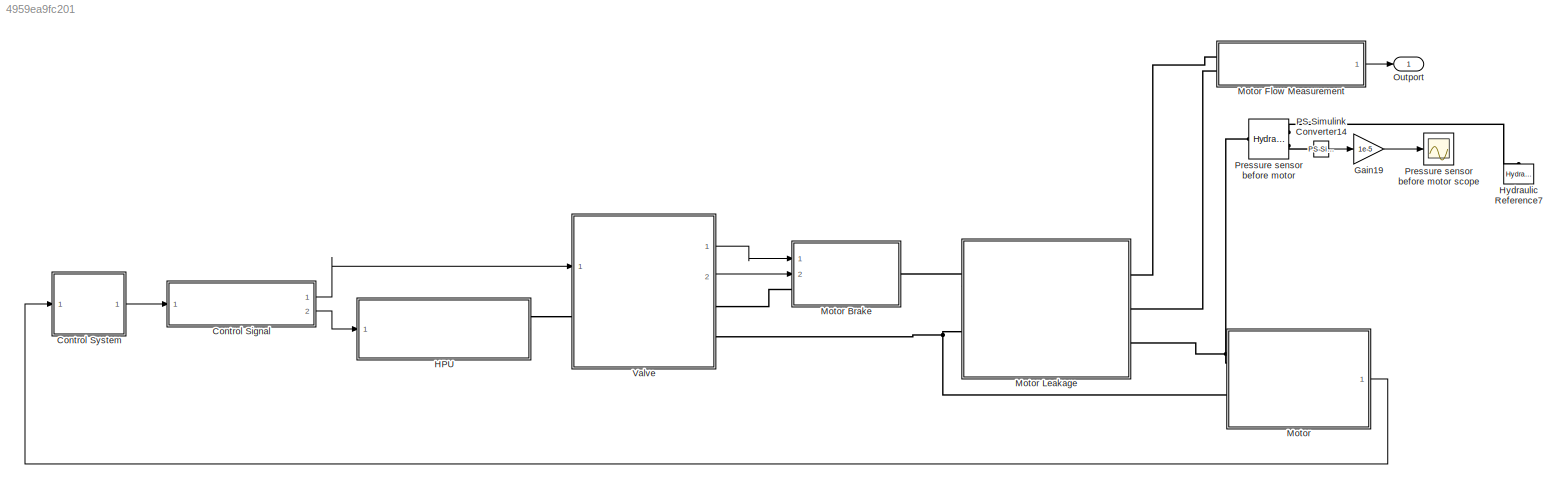
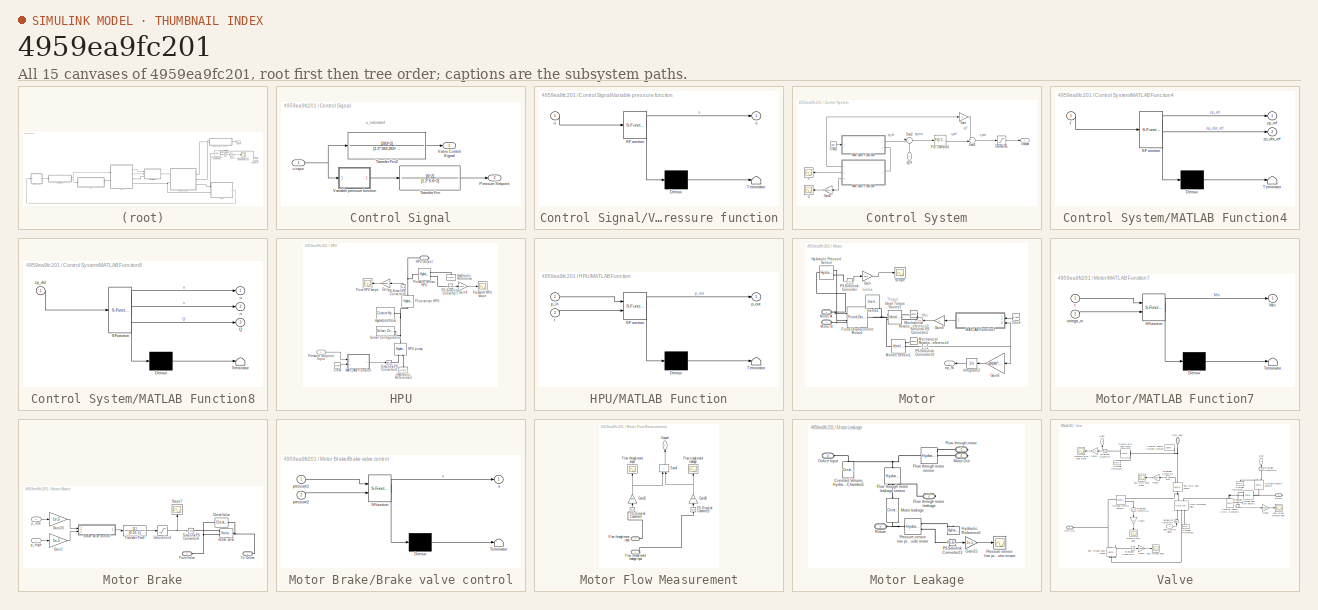
[diagram: thumbnail index - all 15 canvases of the model, root first then tree order]
MODEL slx_4959ea9fc201
KIND model
CONFIG AbsTol = auto
CONFIG EnableMultiTasking = off
CONFIG FixedStep = auto
CONFIG MaxStep = auto
CONFIG MinStep = auto
CONFIG RelTol = 1e-3
CONFIG SampleTimeConstraint = Unconstrained
CONFIG SolverName = VariableStepAuto
CONFIG StartTime = 0.0
CONFIG StopTime = 20
WORKSPACE source: MATLAB code (in-file)
WORKSPACE rho = 875
WORKSPACE P_r = 70e5  (= 7000000)
WORKSPACE Cd = 0.7
WORKSPACE Q_r = 200/6e4  (= 0.00333333333333)
WORKSPACE AdMax = Q_r/Cd/sqrt(2/rho*P_r/2)
WORKSPACE g = 9.81
WORKSPACE zw = 0.8
WORKSPACE tw = 10
WORKSPACE ig = 46
WORKSPACE m = 9000
WORKSPACE mueq = 0.15
WORKSPACE dd = 0.45
WORKSPACE nyv = 0.92
WORKSPACE rd = dd/2  (= 0.225)
WORKSPACE omega0 = 5
WORKSPACE omegap = 1500
WORKSPACE nsh = 3
WORKSPACE gearrationsh = nsh.*2
BLOCK [SubSystem] Control Signal
  Ports = [1, 2]
BLOCK [Outport] Control Signal/Pressure Setpoint
  Port = 2
BLOCK [TransferFcn] Control Signal/Transfer Fcn
  Denominator = [1 2*6 6^2]
  Numerator = [6^2]
BLOCK [TransferFcn] Control Signal/Transfer Fcn2
  Denominator = [1 2*283 283^2]
  Numerator = [283^2]
BLOCK [Outport] Control Signal/Valve Control Signal
BLOCK [SubSystem] Control Signal/Variable pressure function
  ErrorFcn = Stateflow.Translate.translate
  PermitHierarchicalResolution = ExplicitOnly
  Ports = [1, 1]
  SFBlockType = MATLAB Function
  TreatAsAtomicUnit = on
BLOCK [Demux] Control Signal/Variable pressure function/ Demux 
  Outputs = 1
  Ports = [1, 1]
BLOCK [S-Function] Control Signal/Variable pressure function/ SFunction 
  EnableBusSupport = on
  FunctionName = sf_sfun
  PortCounts = [1 2]
  Ports = [1, 2]
  SFcnIsStateOwnerBlock = off
  SFunctionDeploymentMode = off
  Tag = Stateflow S-Function 7
BLOCK [Terminator] Control Signal/Variable pressure function/ Terminator 
BLOCK [Outport] Control Signal/Variable pressure function/s
BLOCK [Inport] Control Signal/Variable pressure function/u
BLOCK [Inport] Control Signal/u input
BLOCK [SubSystem] Control System
  Ports = [1, 1]
BLOCK [Clock] Control System/Clock2
BLOCK [Gain] Control System/Gain
BLOCK [Gain] Control System/Gain17
  Gain = 60000
  NameLocation = top
BLOCK [SubSystem] Control System/MATLAB Function4
  ErrorFcn = Stateflow.Translate.translate
  PermitHierarchicalResolution = ExplicitOnly
  Ports = [1, 2]
  SFBlockType = MATLAB Function
  TreatAsAtomicUnit = on
BLOCK [Demux] Control System/MATLAB Function4/ Demux 
  Outputs = 1
  Ports = [1, 1]
BLOCK [S-Function] Control System/MATLAB Function4/ SFunction 
  EnableBusSupport = on
  FunctionName = sf_sfun
  PortCounts = [1 3]
  Ports = [1, 3]
  SFcnIsStateOwnerBlock = off
  SFunctionDeploymentMode = off
  Tag = Stateflow S-Function 6
BLOCK [Terminator] Control System/MATLAB Function4/ Terminator 
BLOCK [Inport] Control System/MATLAB Function4/t
BLOCK [Outport] Control System/MATLAB Function4/zp_dot_ref
  Port = 2
BLOCK [Outport] Control System/MATLAB Function4/zp_ref
BLOCK [SubSystem] Control System/MATLAB Function8
  ErrorFcn = Stateflow.Translate.translate
  NameLocation = top
  PermitHierarchicalResolution = ExplicitOnly
  Ports = [1, 3]
  SFBlockType = MATLAB Function
  TreatAsAtomicUnit = on
BLOCK [Demux] Control System/MATLAB Function8/ Demux 
  Outputs = 1
  Ports = [1, 1]
BLOCK [S-Function] Control System/MATLAB Function8/ SFunction 
  EnableBusSupport = on
  FunctionName = sf_sfun
  PortCounts = [1 4]
  Ports = [1, 4]
  SFcnIsStateOwnerBlock = off
  SFunctionDeploymentMode = off
  Tag = Stateflow S-Function 11
BLOCK [Terminator] Control System/MATLAB Function8/ Terminator 
BLOCK [Outport] Control System/MATLAB Function8/Q
  Port = 3
BLOCK [Outport] Control System/MATLAB Function8/n
  Port = 2
BLOCK [Outport] Control System/MATLAB Function8/u
BLOCK [Inport] Control System/MATLAB Function8/zp_dot
BLOCK [Reference] Control System/PID Controller1  REF=slpidlib/PID Controller
  Ports = [1, 1]
  SourceBlock = slpidlib/PID Controller
  SourceType = PID 1dof
BLOCK [Scope] Control System/Q
  Floating = off
  NameLocation = top
  NumInputPorts = 1
  Ports = [1]
  ScopeSpecificationString = Simulink.scopes.TimeScopeBlockCfg('CurrentConfiguration', extmgr.ConfigurationSet(extmgr.Configuration('Core','General UI',true),extmgr.Configuration('Core','Source UI',true),extmgr.Configuration('Sources','WiredSimulink',true,'DataLoggingVariableName','ScopeData10'),extmgr.Configuration('Visuals','Time Domain',true,'SerializedDisplays',{struct('MinYLimReal','-206.8159','MaxYLimReal','206.81599','...<+1378ch>
BLOCK [Saturate] Control System/Saturation1
  LowerLimit = -1
  UpperLimit = 1
BLOCK [Sum] Control System/Sum2
  Inputs = |+-
  Ports = [2, 1]
BLOCK [Sum] Control System/Sum3
  Inputs = ++|
  Ports = [2, 1]
BLOCK [Scope] Control System/n
  Floating = off
  NameLocation = top
  NumInputPorts = 1
  Ports = [1]
  ScopeSpecificationString = Simulink.scopes.TimeScopeBlockCfg('CurrentConfiguration', extmgr.ConfigurationSet(extmgr.Configuration('Core','General UI',true),extmgr.Configuration('Core','Source UI',true),extmgr.Configuration('Sources','WiredSimulink',true,'DataLoggingVariableName','ScopeData9'),extmgr.Configuration('Visuals','Time Domain',true,'SerializedDisplays',{struct('MinYLimReal','-122.66661','MaxYLimReal','122.66666','...<+1391ch>
BLOCK [Outport] Control System/u output
BLOCK [Inport] Control System/zp_fb
  NameLocation = right
BLOCK [Gain] Gain19
  Gain = 1e-5
BLOCK [SubSystem] HPU
  Ports = [1, 0, 0, 0, 0, 0, 1]
BLOCK [Clock] HPU/Clock
BLOCK [Scope] HPU/Flow HPU scope
  Floating = off
  NameLocation = top
  NumInputPorts = 1
  Ports = [1]
  ScopeSpecificationString = Simulink.scopes.TimeScopeBlockCfg('CurrentConfiguration', extmgr.ConfigurationSet(extmgr.Configuration('Core','General UI',true),extmgr.Configuration('Core','Source UI',true),extmgr.Configuration('Sources','WiredSimulink',true,'DataLoggingVariableName','ScopeData1'),extmgr.Configuration('Visuals','Time Domain',true,'SerializedDisplays',{struct('MinYLimReal','-25.2073','MaxYLimReal','226.86558','YL...<+1371ch>
BLOCK [Reference] HPU/Flow sensor HPU  REF=fl_lib/Hydraulic/Hydraulic Sensors/Hydraulic Flow Rate
Sensor
  NameLocation = right
  Ports = [0, 0, 0, 0, 0, 1, 3]
  SourceBlock = fl_lib/Hydraulic/Hydraulic Sensors/Hydraulic Flow Rate\nSensor
  SourceType = Hydraulic Flow Rate\nSensor
BLOCK [Gain] HPU/Gain
  Gain = 60000
  NameLocation = top
BLOCK [Gain] HPU/Gain4
  Gain = 1e-5
BLOCK [PMIOPort] HPU/HPU Output
  Side = Right
BLOCK [Reference] HPU/HPU pump  REF=fl_lib/Hydraulic/Hydraulic Sources/Hydraulic Pressure
Source
  NameLocation = right
  Ports = [0, 0, 0, 0, 0, 1, 2]
  SourceBlock = fl_lib/Hydraulic/Hydraulic Sources/Hydraulic Pressure\nSource
  SourceType = Hydraulic Pressure\nSource
BLOCK [Reference] HPU/Hydraulic Reference  REF=fl_lib/Hydraulic/Hydraulic Elements/Hydraulic Reference
  NameLocation = right
  Ports = [0, 0, 0, 0, 0, 1]
  SourceBlock = fl_lib/Hydraulic/Hydraulic Elements/Hydraulic Reference
  SourceType = Hydraulic Reference
BLOCK [Reference] HPU/Hydraulic Reference3  REF=fl_lib/Hydraulic/Hydraulic Elements/Hydraulic Reference
  NameLocation = right
  Ports = [0, 0, 0, 0, 0, 1]
  SourceBlock = fl_lib/Hydraulic/Hydraulic Elements/Hydraulic Reference
  SourceType = Hydraulic Reference
BLOCK [Reference] HPU/Hydraulic fluid  REF=fl_lib/Hydraulic/Hydraulic Utilities/Custom Hydraulic
Fluid
  Ports = [0, 0, 0, 0, 0, 0, 1]
  SourceBlock = fl_lib/Hydraulic/Hydraulic Utilities/Custom Hydraulic\nFluid
  SourceType = Custom Hydraulic\nFluid
BLOCK [SubSystem] HPU/MATLAB Function
  ErrorFcn = Stateflow.Translate.translate
  PermitHierarchicalResolution = ExplicitOnly
  Ports = [2, 1]
  SFBlockType = MATLAB Function
  TreatAsAtomicUnit = on
BLOCK [Demux] HPU/MATLAB Function/ Demux 
  Outputs = 1
  Ports = [1, 1]
BLOCK [S-Function] HPU/MATLAB Function/ SFunction 
  EnableBusSupport = on
  FunctionName = sf_sfun
  PortCounts = [2 2]
  Ports = [2, 2]
  SFcnIsStateOwnerBlock = off
  SFunctionDeploymentMode = off
  Tag = Stateflow S-Function 2
BLOCK [Terminator] HPU/MATLAB Function/ Terminator 
BLOCK [Inport] HPU/MATLAB Function/p_in
BLOCK [Outport] HPU/MATLAB Function/p_out
BLOCK [Inport] HPU/MATLAB Function/t
  Port = 2
BLOCK [Reference] HPU/PS-Simulink Converter6  REF=nesl_utility/PS-Simulink
Converter
  NameLocation = right
  Ports = [0, 1, 0, 0, 0, 1]
  SourceBlock = nesl_utility/PS-Simulink\nConverter
  SourceType = PS-Simulink\nConverter
BLOCK [Reference] HPU/PS-Simulink Converter7  REF=nesl_utility/PS-Simulink
Converter
  Ports = [0, 1, 0, 0, 0, 1]
  SourceBlock = nesl_utility/PS-Simulink\nConverter
  SourceType = PS-Simulink\nConverter
BLOCK [Scope] HPU/Pressure HPU scope
  Floating = off
  NumInputPorts = 1
  Ports = [1]
  ScopeSpecificationString = Simulink.scopes.TimeScopeBlockCfg('CurrentConfiguration', extmgr.ConfigurationSet(extmgr.Configuration('Core','General UI',true),extmgr.Configuration('Core','Source UI',true),extmgr.Configuration('Sources','WiredSimulink',true,'DataLoggingVariableName','ScopeData2'),extmgr.Configuration('Visuals','Time Domain',true,'SerializedDisplays',{struct('MinYLimReal','125.00000','MaxYLimReal','325.00000','Y...<+1378ch>
BLOCK [Inport] HPU/Pressure Setpoint Input
BLOCK [Reference] HPU/Pressure sensor HPU  REF=fl_lib/Hydraulic/Hydraulic Sensors/Hydraulic Pressure
Sensor
  Ports = [0, 0, 0, 0, 0, 1, 2]
  SourceBlock = fl_lib/Hydraulic/Hydraulic Sensors/Hydraulic Pressure\nSensor
  SourceType = Hydraulic Pressure\nSensor
BLOCK [Reference] HPU/Simulink-PS Converter4  REF=nesl_utility/Simulink-PS
Converter
  Ports = [1, 0, 0, 0, 0, 0, 1]
  SourceBlock = nesl_utility/Simulink-PS\nConverter
  SourceType = Simulink-PS\nConverter
BLOCK [Reference] HPU/Solver Configuration  REF=nesl_utility/Solver
Configuration
  Ports = [0, 0, 0, 0, 0, 0, 1]
  SourceBlock = nesl_utility/Solver\nConfiguration
  SourceType = Solver\nConfiguration
BLOCK [Reference] Hydraulic Reference7  REF=fl_lib/Hydraulic/Hydraulic Elements/Hydraulic Reference
  NameLocation = right
  Ports = [0, 0, 0, 0, 0, 1]
  SourceBlock = fl_lib/Hydraulic/Hydraulic Elements/Hydraulic Reference
  SourceType = Hydraulic Reference
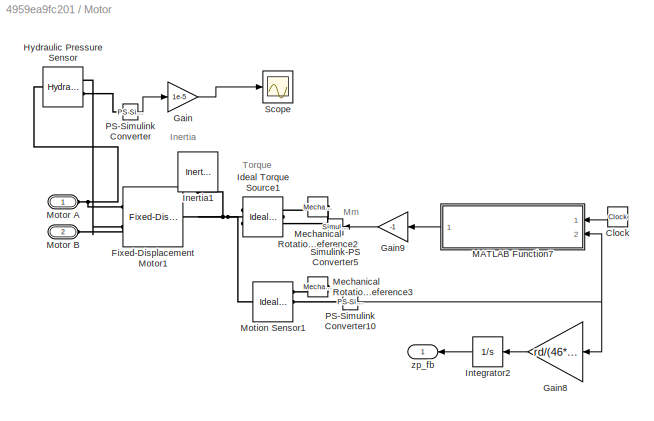
BLOCK [SubSystem] Motor
  Ports = [0, 1, 0, 0, 0, 2]
BLOCK [SubSystem] Motor Brake
  Ports = [2, 0, 0, 0, 0, 1, 1]
BLOCK [Reference] Motor Brake/Brake valve  REF=sh_lib/Orifices/Variable Orifice
  Ports = [0, 0, 0, 0, 0, 2, 1]
  SourceBlock = sh_lib/Orifices/Variable Orifice
  SourceType = Variable Orifice
BLOCK [SubSystem] Motor Brake/Brake valve control
  ErrorFcn = Stateflow.Translate.translate
  PermitHierarchicalResolution = ExplicitOnly
  Ports = [2, 1]
  SFBlockType = MATLAB Function
  TreatAsAtomicUnit = on
BLOCK [Demux] Motor Brake/Brake valve control/ Demux 
  Outputs = 1
  Ports = [1, 1]
BLOCK [S-Function] Motor Brake/Brake valve control/ SFunction 
  EnableBusSupport = on
  FunctionName = sf_sfun
  PortCounts = [2 2]
  Ports = [2, 2]
  SFcnIsStateOwnerBlock = off
  SFunctionDeploymentMode = off
  Tag = Stateflow S-Function 9
BLOCK [Terminator] Motor Brake/Brake valve control/ Terminator 
BLOCK [Inport] Motor Brake/Brake valve control/pressure1
BLOCK [Inport] Motor Brake/Brake valve control/pressure2
  Port = 2
BLOCK [Outport] Motor Brake/Brake valve control/u
BLOCK [Reference] Motor Brake/Check Valve  REF=sh_lib/Valves/Directional Valves/Check Valve
  Ports = [0, 0, 0, 0, 0, 1, 1]
  SourceBlock = sh_lib/Valves/Directional Valves/Check Valve
  SourceType = Check Valve
BLOCK [PMIOPort] Motor Brake/From Valve
  Port = 2
  Side = Left
BLOCK [Gain] Motor Brake/Gain1
  Gain = 1e-5
BLOCK [Gain] Motor Brake/Gain20
  Gain = 1e-5
BLOCK [Saturate] Motor Brake/Saturation2
  LowerLimit = 0
  UpperLimit = 1
BLOCK [Scope] Motor Brake/Scope7
  Floating = off
  NameLocation = right
  NumInputPorts = 1
  Ports = [1]
  ScopeSpecificationString = Simulink.scopes.TimeScopeBlockCfg('CurrentConfiguration', extmgr.ConfigurationSet(extmgr.Configuration('Core','General UI',true),extmgr.Configuration('Core','Source UI',true),extmgr.Configuration('Sources','WiredSimulink',true,'DataLoggingVariableName','ScopeData3'),extmgr.Configuration('Visuals','Time Domain',true,'SerializedDisplays',{struct('MinYLimReal','-0.01373','MaxYLimReal','0.12355','YLab...<+1370ch>
BLOCK [Reference] Motor Brake/Simulink-PS Converter6  REF=nesl_utility/Simulink-PS
Converter
  Ports = [1, 0, 0, 0, 0, 0, 1]
  SourceBlock = nesl_utility/Simulink-PS\nConverter
  SourceType = Simulink-PS\nConverter
BLOCK [PMIOPort] Motor Brake/To Orifice
  Side = Right
BLOCK [TransferFcn] Motor Brake/Transfer Fcn4
  Denominator = [0.05 1]
BLOCK [Inport] Motor Brake/p_high
BLOCK [Inport] Motor Brake/p_low
  Port = 2
BLOCK [SubSystem] Motor Flow Measurement
  Ports = [0, 1, 0, 0, 0, 2]
BLOCK [PMIOPort] Motor Flow Measurement/Flow through motor input
  Side = Left
BLOCK [PMIOPort] Motor Flow Measurement/Flow through motor leakage input
  Port = 2
  Side = Left
BLOCK [Scope] Motor Flow Measurement/Flow through motor scope
  Floating = off
  NameLocation = right
  NumInputPorts = 1
  Ports = [1]
  ScopeSpecificationString = Simulink.scopes.TimeScopeBlockCfg('CurrentConfiguration', extmgr.ConfigurationSet(extmgr.Configuration('Core','General UI',true),extmgr.Configuration('Core','Source UI',true),extmgr.Configuration('Sources','WiredSimulink',true,'DataLoggingVariableName','ScopeData5'),extmgr.Configuration('Visuals','Time Domain',true,'SerializedDisplays',{struct('MinYLimReal','-211.60834','MaxYLimReal','249.94318','...<+1379ch>
BLOCK [Scope] Motor Flow Measurement/Flow trough motor leakage
  Floating = off
  NameLocation = right
  NumInputPorts = 1
  Ports = [1]
  ScopeSpecificationString = Simulink.scopes.TimeScopeBlockCfg('CurrentConfiguration', extmgr.ConfigurationSet(extmgr.Configuration('Core','General UI',true),extmgr.Configuration('Core','Source UI',true),extmgr.Configuration('Sources','WiredSimulink',true,'DataLoggingVariableName','ScopeData2'),extmgr.Configuration('Visuals','Time Domain',true,'SerializedDisplays',{struct('MinYLimReal','-2.86259','MaxYLimReal','12.93564','YLa...<+1402ch>
BLOCK [Gain] Motor Flow Measurement/Gain12
  Gain = 60000
  NameLocation = right
BLOCK [Gain] Motor Flow Measurement/Gain18
  Gain = 60000
  NameLocation = right
BLOCK [Outport] Motor Flow Measurement/Outport
  NameLocation = right
BLOCK [Reference] Motor Flow Measurement/PS-Simulink Converter15  REF=nesl_utility/PS-Simulink
Converter
  NameLocation = right
  Ports = [0, 1, 0, 0, 0, 1]
  SourceBlock = nesl_utility/PS-Simulink\nConverter
  SourceType = PS-Simulink\nConverter
BLOCK [Reference] Motor Flow Measurement/PS-Simulink Converter9  REF=nesl_utility/PS-Simulink
Converter
  NameLocation = right
  Ports = [0, 1, 0, 0, 0, 1]
  SourceBlock = nesl_utility/PS-Simulink\nConverter
  SourceType = PS-Simulink\nConverter
BLOCK [Sum] Motor Flow Measurement/Sum4
  IconShape = rectangular
  NameLocation = right
  Ports = [2, 1]
BLOCK [SubSystem] Motor Leakage
  Ports = [0, 0, 0, 0, 0, 2, 3]
BLOCK [Reference] Motor Leakage/Constant Volume Hydraulic Chamber5  REF=fl_lib/Hydraulic/Hydraulic Elements/Constant Volume
Hydraulic Chamber
  NameLocation = right
  Ports = [0, 0, 0, 0, 0, 1]
  SourceBlock = fl_lib/Hydraulic/Hydraulic Elements/Constant Volume\nHydraulic Chamber
  SourceType = Constant Volume\nHydraulic Chamber
BLOCK [PMIOPort] Motor Leakage/Flow through motor
  NameLocation = top
  Side = Right
BLOCK [PMIOPort] Motor Leakage/Flow through motor leakage
  NameLocation = top
  Port = 2
  Side = Right
BLOCK [Reference] Motor Leakage/Flow through motor leakage sensor  REF=fl_lib/Hydraulic/Hydraulic Sensors/Hydraulic Flow Rate
Sensor
  NameLocation = left
  Ports = [0, 0, 0, 0, 0, 1, 3]
  SourceBlock = fl_lib/Hydraulic/Hydraulic Sensors/Hydraulic Flow Rate\nSensor
  SourceType = Hydraulic Flow Rate\nSensor
BLOCK [Reference] Motor Leakage/Flow through motor sensor  REF=fl_lib/Hydraulic/Hydraulic Sensors/Hydraulic Flow Rate
Sensor
  Ports = [0, 0, 0, 0, 0, 1, 3]
  SourceBlock = fl_lib/Hydraulic/Hydraulic Sensors/Hydraulic Flow Rate\nSensor
  SourceType = Hydraulic Flow Rate\nSensor
BLOCK [Gain] Motor Leakage/Gain15
  Gain = 1e-5
BLOCK [Reference] Motor Leakage/Hydraulic Reference5  REF=fl_lib/Hydraulic/Hydraulic Elements/Hydraulic Reference
  NameLocation = right
  Ports = [0, 0, 0, 0, 0, 1]
  SourceBlock = fl_lib/Hydraulic/Hydraulic Elements/Hydraulic Reference
  SourceType = Hydraulic Reference
BLOCK [PMIOPort] Motor Leakage/Motor Out
  Port = 4
  Side = Right
BLOCK [Reference] Motor Leakage/Motor leakage  REF=fl_lib/Hydraulic/Hydraulic Elements/Constant Area
Hydraulic Orifice
  NameLocation = left
  Ports = [0, 0, 0, 0, 0, 1, 1]
  SourceBlock = fl_lib/Hydraulic/Hydraulic Elements/Constant Area\nHydraulic Orifice
  SourceType = Constant Area\nHydraulic Orifice
BLOCK [PMIOPort] Motor Leakage/Orifice Input
  Port = 3
  Side = Left
BLOCK [Reference] Motor Leakage/PS-Simulink Converter13  REF=nesl_utility/PS-Simulink
Converter
  Ports = [0, 1, 0, 0, 0, 1]
  SourceBlock = nesl_utility/PS-Simulink\nConverter
  SourceType = PS-Simulink\nConverter
BLOCK [Reference] Motor Leakage/Pressure sensor low pressure side motor  REF=fl_lib/Hydraulic/Hydraulic Sensors/Hydraulic Pressure
Sensor
  Ports = [0, 0, 0, 0, 0, 1, 2]
  SourceBlock = fl_lib/Hydraulic/Hydraulic Sensors/Hydraulic Pressure\nSensor
  SourceType = Hydraulic Pressure\nSensor
BLOCK [Scope] Motor Leakage/Pressure sensor low pressure side motor scope
  Floating = off
  NumInputPorts = 1
  Ports = [1]
  ScopeSpecificationString = Simulink.scopes.TimeScopeBlockCfg('CurrentConfiguration', extmgr.ConfigurationSet(extmgr.Configuration('Core','General UI',true),extmgr.Configuration('Core','Source UI',true),extmgr.Configuration('Sources','WiredSimulink',true,'DataLoggingVariableName','ScopeData8'),extmgr.Configuration('Visuals','Time Domain',true,'SerializedDisplays',{struct('MinYLimReal','-12.47952','MaxYLimReal','134.85237','Y...<+1408ch>
BLOCK [PMIOPort] Motor Leakage/Return
  Port = 5
  Side = Left
BLOCK [Clock] Motor/Clock
  NameLocation = top
BLOCK [Reference] Motor/Fixed-Displacement Motor1  REF=sh_lib/Pumps and Motors/Fixed-Displacement
Motor
  Ports = [0, 0, 0, 0, 0, 2, 1]
  SourceBlock = sh_lib/Pumps and Motors/Fixed-Displacement\nMotor
  SourceType = Fixed-Displacement\nMotor
BLOCK [Gain] Motor/Gain
  Gain = 1e-5
BLOCK [Gain] Motor/Gain8
  Gain = rd/(46*6)
  NameLocation = top
BLOCK [Gain] Motor/Gain9
  Gain = -1
  NameLocation = top
BLOCK [Reference] Motor/Hydraulic Pressure Sensor  REF=fl_lib/Hydraulic/Hydraulic Sensors/Hydraulic Pressure
Sensor
  Ports = [0, 0, 0, 0, 0, 1, 2]
  SourceBlock = fl_lib/Hydraulic/Hydraulic Sensors/Hydraulic Pressure\nSensor
  SourceType = Hydraulic Pressure\nSensor
BLOCK [Reference] Motor/Ideal Torque Source1  REF=fl_lib/Mechanical/Mechanical Sources/Ideal Torque Source
  NameLocation = top
  Ports = [0, 0, 0, 0, 0, 1, 2]
  SourceBlock = fl_lib/Mechanical/Mechanical Sources/Ideal Torque Source
  SourceType = Ideal Torque Source
BLOCK [Reference] Motor/Inertia1  REF=fl_lib/Mechanical/Rotational Elements/Inertia
  NameLocation = left
  Ports = [0, 0, 0, 0, 0, 1]
  SourceBlock = fl_lib/Mechanical/Rotational Elements/Inertia
  SourceType = Inertia
  Tag = Factory Generic
BLOCK [Integrator] Motor/Integrator2
  NameLocation = top
  Ports = [1, 1]
BLOCK [SubSystem] Motor/MATLAB Function7
  ErrorFcn = Stateflow.Translate.translate
  NameLocation = top
  PermitHierarchicalResolution = ExplicitOnly
  Ports = [2, 1]
  SFBlockType = MATLAB Function
  TreatAsAtomicUnit = on
BLOCK [Demux] Motor/MATLAB Function7/ Demux 
  Outputs = 1
  Ports = [1, 1]
BLOCK [S-Function] Motor/MATLAB Function7/ SFunction 
  EnableBusSupport = on
  FunctionName = sf_sfun
  PortCounts = [2 2]
  Ports = [2, 2]
  SFcnIsStateOwnerBlock = off
  SFunctionDeploymentMode = off
  Tag = Stateflow S-Function 10
BLOCK [Terminator] Motor/MATLAB Function7/ Terminator 
BLOCK [Outport] Motor/MATLAB Function7/Mm
BLOCK [Inport] Motor/MATLAB Function7/omega_m
  Port = 2
BLOCK [Inport] Motor/MATLAB Function7/t
BLOCK [Reference] Motor/Mechanical Rotational Reference2  REF=fl_lib/Mechanical/Rotational Elements/Mechanical
Rotational Reference
  NameLocation = top
  Ports = [0, 0, 0, 0, 0, 1]
  SourceBlock = fl_lib/Mechanical/Rotational Elements/Mechanical\nRotational Reference
  SourceType = Mechanical\nRotational Reference
BLOCK [Reference] Motor/Mechanical Rotational Reference3  REF=fl_lib/Mechanical/Rotational Elements/Mechanical
Rotational Reference
  NameLocation = top
  Ports = [0, 0, 0, 0, 0, 1]
  SourceBlock = fl_lib/Mechanical/Rotational Elements/Mechanical\nRotational Reference
  SourceType = Mechanical\nRotational Reference
BLOCK [Reference] Motor/Motion Sensor1  REF=fl_lib/Mechanical/Mechanical Sensors/Ideal Rotational
Motion Sensor
  Ports = [0, 0, 0, 0, 0, 1, 3]
  SourceBlock = fl_lib/Mechanical/Mechanical Sensors/Ideal Rotational\nMotion Sensor
  SourceType = Ideal Rotational\nMotion Sensor
  Tag = Factory Generic
BLOCK [PMIOPort] Motor/Motor A
  Side = Left
BLOCK [PMIOPort] Motor/Motor B
  Port = 2
  Side = Left
BLOCK [Reference] Motor/PS-Simulink Converter  REF=nesl_utility/PS-Simulink
Converter
  Ports = [0, 1, 0, 0, 0, 1]
  SourceBlock = nesl_utility/PS-Simulink\nConverter
  SourceType = PS-Simulink\nConverter
BLOCK [Reference] Motor/PS-Simulink Converter10  REF=nesl_utility/PS-Simulink
Converter
  Ports = [0, 1, 0, 0, 0, 1]
  SourceBlock = nesl_utility/PS-Simulink\nConverter
  SourceType = PS-Simulink\nConverter
BLOCK [Scope] Motor/Scope
  Floating = off
  NumInputPorts = 1
  Ports = [1]
  ScopeSpecificationString = Simulink.scopes.TimeScopeBlockCfg('CurrentConfiguration', extmgr.ConfigurationSet(extmgr.Configuration('Core','General UI',true),extmgr.Configuration('Core','Source UI',true),extmgr.Configuration('Sources','WiredSimulink',true,'DataLoggingVariableName','ScopeData1'),extmgr.Configuration('Visuals','Time Domain',true,'SerializedDisplays',{struct('MinYLimReal','-65.73804','MaxYLimReal','334.21555','Y...<+1373ch>
BLOCK [Reference] Motor/Simulink-PS Converter5  REF=nesl_utility/Simulink-PS
Converter
  NameLocation = top
  Ports = [1, 0, 0, 0, 0, 0, 1]
  SourceBlock = nesl_utility/Simulink-PS\nConverter
  SourceType = Simulink-PS\nConverter
BLOCK [Outport] Motor/zp_fb
  NameLocation = top
BLOCK [Outport] Outport
BLOCK [Reference] PS-Simulink Converter14  REF=nesl_utility/PS-Simulink
Converter
  Ports = [0, 1, 0, 0, 0, 1]
  SourceBlock = nesl_utility/PS-Simulink\nConverter
  SourceType = PS-Simulink\nConverter
BLOCK [Reference] Pressure sensor before motor  REF=fl_lib/Hydraulic/Hydraulic Sensors/Hydraulic Pressure
Sensor
  Ports = [0, 0, 0, 0, 0, 1, 2]
  SourceBlock = fl_lib/Hydraulic/Hydraulic Sensors/Hydraulic Pressure\nSensor
  SourceType = Hydraulic Pressure\nSensor
BLOCK [Scope] Pressure sensor before motor scope
  Floating = off
  NumInputPorts = 1
  Ports = [1]
  ScopeSpecificationString = Simulink.scopes.TimeScopeBlockCfg('CurrentConfiguration', extmgr.ConfigurationSet(extmgr.Configuration('Core','General UI',true),extmgr.Configuration('Core','Source UI',true),extmgr.Configuration('Sources','WiredSimulink',true,'DataLoggingVariableName','ScopeData11'),extmgr.Configuration('Visuals','Time Domain',true,'SerializedDisplays',{struct('MinYLimReal','-28.11079','MaxYLimReal','252.99707','...<+1407ch>
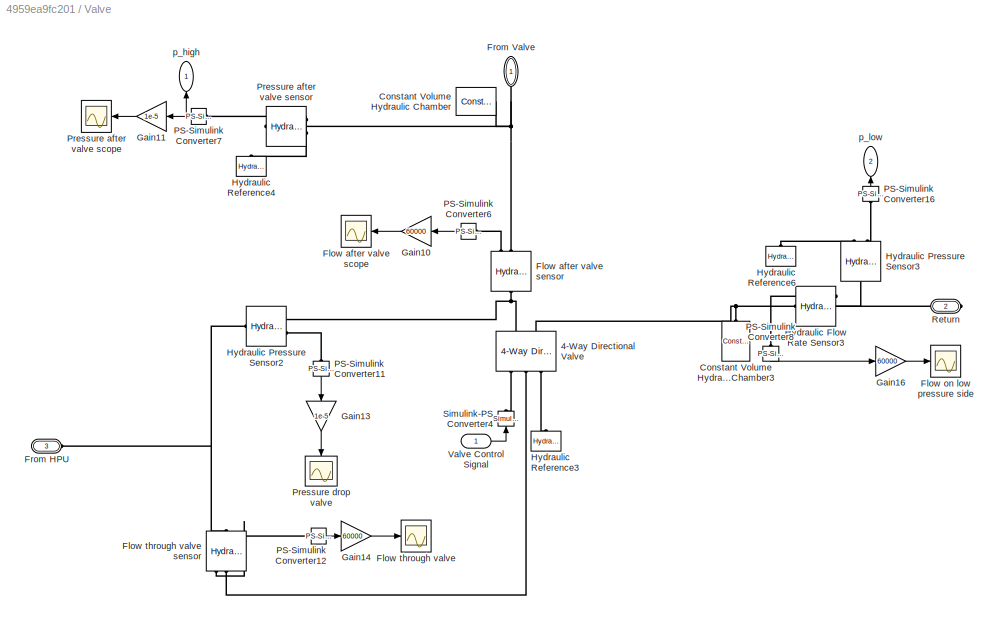
BLOCK [SubSystem] Valve
  Ports = [1, 2, 0, 0, 0, 1, 2]
BLOCK [Reference] Valve/4-Way Directional Valve  REF=sh_lib/Valves/Directional Valves/4-Way Directional
Valve
  NameLocation = right
  Ports = [0, 0, 0, 0, 0, 2, 3]
  SourceBlock = sh_lib/Valves/Directional Valves/4-Way Directional\nValve
  SourceType = 4-Way Directional\nValve
BLOCK [Reference] Valve/Constant Volume Hydraulic Chamber  REF=fl_lib/Hydraulic/Hydraulic Elements/Constant Volume
Hydraulic Chamber
  Ports = [0, 0, 0, 0, 0, 1]
  SourceBlock = fl_lib/Hydraulic/Hydraulic Elements/Constant Volume\nHydraulic Chamber
  SourceType = Constant Volume\nHydraulic Chamber
BLOCK [Reference] Valve/Constant Volume Hydraulic Chamber3  REF=fl_lib/Hydraulic/Hydraulic Elements/Constant Volume
Hydraulic Chamber
  NameLocation = right
  Ports = [0, 0, 0, 0, 0, 1]
  SourceBlock = fl_lib/Hydraulic/Hydraulic Elements/Constant Volume\nHydraulic Chamber
  SourceType = Constant Volume\nHydraulic Chamber
BLOCK [Scope] Valve/Flow after valve scope
  Floating = off
  NameLocation = top
  NumInputPorts = 1
  Ports = [1]
  ScopeSpecificationString = Simulink.scopes.TimeScopeBlockCfg('CurrentConfiguration', extmgr.ConfigurationSet(extmgr.Configuration('Core','General UI',true),extmgr.Configuration('Core','Source UI',true),extmgr.Configuration('Sources','WiredSimulink',true,'DataLoggingVariableName','ScopeData4'),extmgr.Configuration('Visuals','Time Domain',true,'SerializedDisplays',{struct('MinYLimReal','-201.83037','MaxYLimReal','245.93167','...<+1412ch>
BLOCK [Reference] Valve/Flow after valve sensor  REF=fl_lib/Hydraulic/Hydraulic Sensors/Hydraulic Flow Rate
Sensor
  NameLocation = right
  Ports = [0, 0, 0, 0, 0, 1, 3]
  SourceBlock = fl_lib/Hydraulic/Hydraulic Sensors/Hydraulic Flow Rate\nSensor
  SourceType = Hydraulic Flow Rate\nSensor
BLOCK [Scope] Valve/Flow on low pressure side
  Floating = off
  NumInputPorts = 1
  Ports = [1]
  ScopeSpecificationString = Simulink.scopes.TimeScopeBlockCfg('CurrentConfiguration', extmgr.ConfigurationSet(extmgr.Configuration('Core','General UI',true),extmgr.Configuration('Core','Source UI',true),extmgr.Configuration('Sources','WiredSimulink',true,'DataLoggingVariableName','ScopeData1'),extmgr.Configuration('Visuals','Time Domain',true,'SerializedDisplays',{struct('MinYLimReal','-201.83214','MaxYLimReal','245.94541','...<+1412ch>
BLOCK [Scope] Valve/Flow through valve
  Floating = off
  NumInputPorts = 1
  Ports = [1]
  ScopeSpecificationString = Simulink.scopes.TimeScopeBlockCfg('CurrentConfiguration', extmgr.ConfigurationSet(extmgr.Configuration('Core','General UI',true),extmgr.Configuration('Core','Source UI',true),extmgr.Configuration('Sources','WiredSimulink',true,'DataLoggingVariableName','ScopeData7'),extmgr.Configuration('Visuals','Time Domain',true,'SerializedDisplays',{struct('MinYLimReal','-89.82835','MaxYLimReal','806.79653','Y...<+1375ch>
BLOCK [Reference] Valve/Flow through valve sensor  REF=fl_lib/Hydraulic/Hydraulic Sensors/Hydraulic Flow Rate
Sensor
  NameLocation = left
  Ports = [0, 0, 0, 0, 0, 1, 3]
  SourceBlock = fl_lib/Hydraulic/Hydraulic Sensors/Hydraulic Flow Rate\nSensor
  SourceType = Hydraulic Flow Rate\nSensor
BLOCK [PMIOPort] Valve/From HPU
  Port = 3
  Side = Left
BLOCK [PMIOPort] Valve/From Valve
  NameLocation = right
  Side = Right
BLOCK [Gain] Valve/Gain10
  Gain = 60000
  NameLocation = top
BLOCK [Gain] Valve/Gain11
  Gain = 1e-5
  NameLocation = top
BLOCK [Gain] Valve/Gain13
  Gain = 1e-5
  NameLocation = left
BLOCK [Gain] Valve/Gain14
  Gain = 60000
BLOCK [Gain] Valve/Gain16
  Gain = 60000
BLOCK [Reference] Valve/Hydraulic Flow Rate Sensor3  REF=fl_lib/Hydraulic/Hydraulic Sensors/Hydraulic Flow Rate
Sensor
  NameLocation = top
  Ports = [0, 0, 0, 0, 0, 1, 3]
  SourceBlock = fl_lib/Hydraulic/Hydraulic Sensors/Hydraulic Flow Rate\nSensor
  SourceType = Hydraulic Flow Rate\nSensor
BLOCK [Reference] Valve/Hydraulic Pressure Sensor2  REF=fl_lib/Hydraulic/Hydraulic Sensors/Hydraulic Pressure
Sensor
  Ports = [0, 0, 0, 0, 0, 1, 2]
  SourceBlock = fl_lib/Hydraulic/Hydraulic Sensors/Hydraulic Pressure\nSensor
  SourceType = Hydraulic Pressure\nSensor
BLOCK [Reference] Valve/Hydraulic Pressure Sensor3  REF=fl_lib/Hydraulic/Hydraulic Sensors/Hydraulic Pressure
Sensor
  NameLocation = right
  Ports = [0, 0, 0, 0, 0, 1, 2]
  SourceBlock = fl_lib/Hydraulic/Hydraulic Sensors/Hydraulic Pressure\nSensor
  SourceType = Hydraulic Pressure\nSensor
BLOCK [Reference] Valve/Hydraulic Reference3  REF=fl_lib/Hydraulic/Hydraulic Elements/Hydraulic Reference
  NameLocation = right
  Ports = [0, 0, 0, 0, 0, 1]
  SourceBlock = fl_lib/Hydraulic/Hydraulic Elements/Hydraulic Reference
  SourceType = Hydraulic Reference
BLOCK [Reference] Valve/Hydraulic Reference4  REF=fl_lib/Hydraulic/Hydraulic Elements/Hydraulic Reference
  NameLocation = right
  Ports = [0, 0, 0, 0, 0, 1]
  SourceBlock = fl_lib/Hydraulic/Hydraulic Elements/Hydraulic Reference
  SourceType = Hydraulic Reference
BLOCK [Reference] Valve/Hydraulic Reference6  REF=fl_lib/Hydraulic/Hydraulic Elements/Hydraulic Reference
  NameLocation = right
  Ports = [0, 0, 0, 0, 0, 1]
  SourceBlock = fl_lib/Hydraulic/Hydraulic Elements/Hydraulic Reference
  SourceType = Hydraulic Reference
BLOCK [Reference] Valve/PS-Simulink Converter11  REF=nesl_utility/PS-Simulink
Converter
  NameLocation = left
  Ports = [0, 1, 0, 0, 0, 1]
  SourceBlock = nesl_utility/PS-Simulink\nConverter
  SourceType = PS-Simulink\nConverter
BLOCK [Reference] Valve/PS-Simulink Converter12  REF=nesl_utility/PS-Simulink
Converter
  Ports = [0, 1, 0, 0, 0, 1]
  SourceBlock = nesl_utility/PS-Simulink\nConverter
  SourceType = PS-Simulink\nConverter
BLOCK [Reference] Valve/PS-Simulink Converter16  REF=nesl_utility/PS-Simulink
Converter
  NameLocation = right
  Ports = [0, 1, 0, 0, 0, 1]
  SourceBlock = nesl_utility/PS-Simulink\nConverter
  SourceType = PS-Simulink\nConverter
BLOCK [Reference] Valve/PS-Simulink Converter6  REF=nesl_utility/PS-Simulink
Converter
  NameLocation = top
  Ports = [0, 1, 0, 0, 0, 1]
  SourceBlock = nesl_utility/PS-Simulink\nConverter
  SourceType = PS-Simulink\nConverter
BLOCK [Reference] Valve/PS-Simulink Converter7  REF=nesl_utility/PS-Simulink
Converter
  NameLocation = top
  Ports = [0, 1, 0, 0, 0, 1]
  SourceBlock = nesl_utility/PS-Simulink\nConverter
  SourceType = PS-Simulink\nConverter
BLOCK [Reference] Valve/PS-Simulink Converter8  REF=nesl_utility/PS-Simulink
Converter
  NameLocation = left
  Ports = [0, 1, 0, 0, 0, 1]
  SourceBlock = nesl_utility/PS-Simulink\nConverter
  SourceType = PS-Simulink\nConverter
BLOCK [Scope] Valve/Pressure after valve scope
  Floating = off
  NameLocation = top
  NumInputPorts = 1
  Ports = [1]
  ScopeSpecificationString = Simulink.scopes.TimeScopeBlockCfg('CurrentConfiguration', extmgr.ConfigurationSet(extmgr.Configuration('Core','General UI',true),extmgr.Configuration('Core','Source UI',true),extmgr.Configuration('Sources','WiredSimulink',true,'DataLoggingVariableName','ScopeData3'),extmgr.Configuration('Visuals','Time Domain',true,'SerializedDisplays',{struct('MinYLimReal','-32.21645','MaxYLimReal','289.94807','Y...<+1408ch>
BLOCK [Reference] Valve/Pressure after valve sensor  REF=fl_lib/Hydraulic/Hydraulic Sensors/Hydraulic Pressure
Sensor
  NameLocation = top
  Ports = [0, 0, 0, 0, 0, 1, 2]
  SourceBlock = fl_lib/Hydraulic/Hydraulic Sensors/Hydraulic Pressure\nSensor
  SourceType = Hydraulic Pressure\nSensor
BLOCK [Scope] Valve/Pressure drop valve
  Floating = off
  NameLocation = left
  NumInputPorts = 1
  Ports = [1]
  ScopeSpecificationString = Simulink.scopes.TimeScopeBlockCfg('CurrentConfiguration', extmgr.ConfigurationSet(extmgr.Configuration('Core','General UI',true),extmgr.Configuration('Core','Source UI',true),extmgr.Configuration('Sources','WiredSimulink',true,'DataLoggingVariableName','ScopeData6'),extmgr.Configuration('Visuals','Time Domain',true,'SerializedDisplays',{struct('MinYLimReal','-109.64083','MaxYLimReal','245.504','YL...<+1401ch>
BLOCK [PMIOPort] Valve/Return
  Port = 2
  Side = Right
BLOCK [Reference] Valve/Simulink-PS Converter4  REF=nesl_utility/Simulink-PS
Converter
  NameLocation = right
  Ports = [1, 0, 0, 0, 0, 0, 1]
  SourceBlock = nesl_utility/Simulink-PS\nConverter
  SourceType = Simulink-PS\nConverter
BLOCK [Inport] Valve/Valve Control Signal
BLOCK [Outport] Valve/p_high
  NameLocation = right
BLOCK [Outport] Valve/p_low
  NameLocation = right
  Port = 2
ANNOTATION Control Signal: u_saturated
ANNOTATION Control System: zp_error
ANNOTATION Control System: u_ff
ANNOTATION Control System: u_pid
ANNOTATION Control System: u_sum
ANNOTATION Control System: zp_ref
ANNOTATION Motor: Inertia
ANNOTATION Motor: Mm
ANNOTATION Motor: Torque
LINE Control Signal/Transfer Fcn2:1 -> Control Signal/Valve Control Signal:1
LINE Control Signal/Transfer Fcn:1 -> Control Signal/Pressure Setpoint:1
LINE Control Signal/Variable pressure function:1 -> Control Signal/Transfer Fcn:1
NET Control Signal/u input:1 -> Control Signal/Transfer Fcn2:1, Control Signal/Variable pressure function:1
LINE Control Signal:1 -> Valve:1
LINE Control Signal:2 -> HPU:1
LINE Control System/Clock2:1 -> Control System/MATLAB Function4:1
LINE Control System/Gain17:1 -> Control System/Q:1
LINE Control System/Gain:1 -> Control System/Sum3:1
LINE Control System/MATLAB Function4:1 -> Control System/Sum2:1
LINE Control System/MATLAB Function4:2 -> Control System/MATLAB Function8:1
LINE Control System/MATLAB Function8:1 -> Control System/Gain:1
LINE Control System/MATLAB Function8:2 -> Control System/n:1
LINE Control System/MATLAB Function8:3 -> Control System/Gain17:1
LINE Control System/PID Controller1:1 -> Control System/Sum3:2
LINE Control System/Saturation1:1 -> Control System/u output:1
LINE Control System/Sum2:1 -> Control System/PID Controller1:1
LINE Control System/Sum3:1 -> Control System/Saturation1:1
LINE Control System/zp_fb:1 -> Control System/Sum2:2
LINE Control System:1 -> Control Signal:1
LINE Gain19:1 -> Pressure sensor before motor scope:1
LINE HPU/Clock:1 -> HPU/MATLAB Function:2
LINE HPU/Gain4:1 -> HPU/Pressure HPU scope:1
LINE HPU/Gain:1 -> HPU/Flow HPU scope:1
LINE HPU/MATLAB Function:1 -> HPU/Simulink-PS Converter4:1
LINE HPU/PS-Simulink Converter6:1 -> HPU/Gain:1
LINE HPU/PS-Simulink Converter7:1 -> HPU/Gain4:1
LINE HPU/Pressure Setpoint Input:1 -> HPU/MATLAB Function:1
LINE Motor Brake/Brake valve control:1 -> Motor Brake/Transfer Fcn4:1
LINE Motor Brake/Gain1:1 -> Motor Brake/Brake valve control:2
LINE Motor Brake/Gain20:1 -> Motor Brake/Brake valve control:1
NET Motor Brake/Saturation2:1 -> Motor Brake/Scope7:1, Motor Brake/Simulink-PS Converter6:1
LINE Motor Brake/Transfer Fcn4:1 -> Motor Brake/Saturation2:1
LINE Motor Brake/p_high:1 -> Motor Brake/Gain1:1
LINE Motor Brake/p_low:1 -> Motor Brake/Gain20:1
NET Motor Flow Measurement/Gain12:1 -> Motor Flow Measurement/Flow through motor scope:1, Motor Flow Measurement/Sum4:1
NET Motor Flow Measurement/Gain18:1 -> Motor Flow Measurement/Flow trough motor leakage:1, Motor Flow Measurement/Sum4:2
LINE Motor Flow Measurement/PS-Simulink Converter15:1 -> Motor Flow Measurement/Gain18:1
LINE Motor Flow Measurement/PS-Simulink Converter9:1 -> Motor Flow Measurement/Gain12:1
LINE Motor Flow Measurement/Sum4:1 -> Motor Flow Measurement/Outport:1
LINE Motor Flow Measurement:1 -> Outport:1
LINE Motor Leakage/Gain15:1 -> Motor Leakage/Pressure sensor low pressure side motor scope:1
LINE Motor Leakage/PS-Simulink Converter13:1 -> Motor Leakage/Gain15:1
LINE Motor/Clock:1 -> Motor/MATLAB Function7:1
LINE Motor/Gain8:1 -> Motor/Integrator2:1
LINE Motor/Gain9:1 -> Motor/Simulink-PS Converter5:1
LINE Motor/Gain:1 -> Motor/Scope:1
LINE Motor/Integrator2:1 -> Motor/zp_fb:1
LINE Motor/MATLAB Function7:1 -> Motor/Gain9:1
NET Motor/PS-Simulink Converter10:1 -> Motor/Gain8:1, Motor/MATLAB Function7:2
LINE Motor/PS-Simulink Converter:1 -> Motor/Gain:1
LINE Motor:1 -> Control System:1
LINE PS-Simulink Converter14:1 -> Gain19:1
LINE Valve/Gain10:1 -> Valve/Flow after valve scope:1
LINE Valve/Gain11:1 -> Valve/Pressure after valve scope:1
LINE Valve/Gain13:1 -> Valve/Pressure drop valve:1
LINE Valve/Gain14:1 -> Valve/Flow through valve:1
LINE Valve/Gain16:1 -> Valve/Flow on low pressure side:1
LINE Valve/PS-Simulink Converter11:1 -> Valve/Gain13:1
LINE Valve/PS-Simulink Converter12:1 -> Valve/Gain14:1
LINE Valve/PS-Simulink Converter16:1 -> Valve/p_low:1
LINE Valve/PS-Simulink Converter6:1 -> Valve/Gain10:1
NET Valve/PS-Simulink Converter7:1 -> Valve/Gain11:1, Valve/p_high:1
LINE Valve/PS-Simulink Converter8:1 -> Valve/Gain16:1
LINE Valve/Valve Control Signal:1 -> Valve/Simulink-PS Converter4:1
LINE Valve:1 -> Motor Brake:1
LINE Valve:2 -> Motor Brake:2
PNET net1: HPU/Flow sensor HPU:LConn1 -- HPU/HPU pump:LConn1 -- HPU/Hydraulic fluid:RConn1 -- HPU/Solver Configuration:RConn1
PLINE HPU/Flow sensor HPU:RConn1 -- HPU/PS-Simulink Converter6:LConn1
PNET net2: HPU/Flow sensor HPU:RConn2 -- HPU/HPU Output:RConn1 -- HPU/Pressure sensor HPU:LConn1
PLINE HPU/HPU pump:RConn1 -- HPU/Simulink-PS Converter4:RConn1
PLINE HPU/HPU pump:RConn2 -- HPU/Hydraulic Reference3:LConn1
PLINE HPU/Hydraulic Reference:LConn1 -- HPU/Pressure sensor HPU:RConn1
PLINE HPU/PS-Simulink Converter7:LConn1 -- HPU/Pressure sensor HPU:RConn2
PLINE HPU:RConn1 -- Valve:LConn1
PLINE Hydraulic Reference7:LConn1 -- Pressure sensor before motor:RConn1
PLINE Motor Brake/Brake valve:LConn1 -- Motor Brake/Simulink-PS Converter6:RConn1
PNET net3: Motor Brake/Brake valve:LConn2 -- Motor Brake/Check Valve:LConn1 -- Motor Brake/From Valve:RConn1
PNET net4: Motor Brake/Brake valve:RConn1 -- Motor Brake/Check Valve:RConn1 -- Motor Brake/To Orifice:RConn1
PLINE Motor Brake:LConn1 -- Valve:RConn1
PLINE Motor Brake:RConn1 -- Motor Leakage:LConn1
PLINE Motor Flow Measurement/Flow through motor input:RConn1 -- Motor Flow Measurement/PS-Simulink Converter9:LConn1
PLINE Motor Flow Measurement/Flow through motor leakage input:RConn1 -- Motor Flow Measurement/PS-Simulink Converter15:LConn1
PLINE Motor Flow Measurement:LConn1 -- Motor Leakage:RConn1
PLINE Motor Flow Measurement:LConn2 -- Motor Leakage:RConn2
PNET net5: Motor Leakage/Constant Volume Hydraulic Chamber5:LConn1 -- Motor Leakage/Flow through motor leakage sensor:LConn1 -- Motor Leakage/Flow through motor sensor:LConn1 -- Motor Leakage/Orifice Input:RConn1
PLINE Motor Leakage/Flow through motor leakage sensor:RConn1 -- Motor Leakage/Flow through motor leakage:RConn1
PLINE Motor Leakage/Flow through motor leakage sensor:RConn2 -- Motor Leakage/Motor leakage:LConn1
PLINE Motor Leakage/Flow through motor sensor:RConn1 -- Motor Leakage/Flow through motor:RConn1
PLINE Motor Leakage/Flow through motor sensor:RConn2 -- Motor Leakage/Motor Out:RConn1
PLINE Motor Leakage/Hydraulic Reference5:LConn1 -- Motor Leakage/Pressure sensor low pressure side motor:RConn1
PNET net6: Motor Leakage/Motor leakage:RConn1 -- Motor Leakage/Pressure sensor low pressure side motor:LConn1 -- Motor Leakage/Return:RConn1
PLINE Motor Leakage/PS-Simulink Converter13:LConn1 -- Motor Leakage/Pressure sensor low pressure side motor:RConn2
PNET net7: Motor Leakage:LConn2 -- Motor:LConn2 -- Valve:RConn2
PNET net8: Motor Leakage:RConn3 -- Motor:LConn1 -- Pressure sensor before motor:LConn1
PNET net9: Motor/Fixed-Displacement Motor1:LConn1 -- Motor/Hydraulic Pressure Sensor:LConn1 -- Motor/Motor A:RConn1
PNET net10: Motor/Fixed-Displacement Motor1:LConn2 -- Motor/Hydraulic Pressure Sensor:RConn1 -- Motor/Motor B:RConn1
PNET net11: Motor/Fixed-Displacement Motor1:RConn1 -- Motor/Ideal Torque Source1:LConn1 -- Motor/Inertia1:LConn1 -- Motor/Motion Sensor1:LConn1
PLINE Motor/Hydraulic Pressure Sensor:RConn2 -- Motor/PS-Simulink Converter:LConn1
PLINE Motor/Ideal Torque Source1:RConn1 -- Motor/Simulink-PS Converter5:RConn1
PLINE Motor/Ideal Torque Source1:RConn2 -- Motor/Mechanical Rotational Reference2:LConn1
PLINE Motor/Mechanical Rotational Reference3:LConn1 -- Motor/Motion Sensor1:RConn1
PLINE Motor/Motion Sensor1:RConn2 -- Motor/PS-Simulink Converter10:LConn1
PLINE PS-Simulink Converter14:LConn1 -- Pressure sensor before motor:RConn2
PNET net12: Valve/4-Way Directional Valve:LConn1 -- Valve/Flow after valve sensor:LConn1 -- Valve/Hydraulic Pressure Sensor2:RConn1
PNET net13: Valve/4-Way Directional Valve:LConn2 -- Valve/Constant Volume Hydraulic Chamber3:LConn1 -- Valve/Hydraulic Flow Rate Sensor3:RConn2
PLINE Valve/4-Way Directional Valve:RConn1 -- Valve/Simulink-PS Converter4:RConn1
PLINE Valve/4-Way Directional Valve:RConn2 -- Valve/Flow through valve sensor:RConn2
PLINE Valve/4-Way Directional Valve:RConn3 -- Valve/Hydraulic Reference3:LConn1
PNET net14: Valve/Constant Volume Hydraulic Chamber:LConn1 -- Valve/Flow after valve sensor:RConn2 -- Valve/From Valve:RConn1 -- Valve/Pressure after valve sensor:LConn1
PLINE Valve/Flow after valve sensor:RConn1 -- Valve/PS-Simulink Converter6:LConn1
PNET net15: Valve/Flow through valve sensor:LConn1 -- Valve/From HPU:RConn1 -- Valve/Hydraulic Pressure Sensor2:LConn1
PLINE Valve/Flow through valve sensor:RConn1 -- Valve/PS-Simulink Converter12:LConn1
PNET net16: Valve/Hydraulic Flow Rate Sensor3:LConn1 -- Valve/Hydraulic Pressure Sensor3:LConn1 -- Valve/Return:RConn1
PLINE Valve/Hydraulic Flow Rate Sensor3:RConn1 -- Valve/PS-Simulink Converter8:LConn1
PLINE Valve/Hydraulic Pressure Sensor2:RConn2 -- Valve/PS-Simulink Converter11:LConn1
PLINE Valve/Hydraulic Pressure Sensor3:RConn1 -- Valve/Hydraulic Reference6:LConn1
PLINE Valve/Hydraulic Pressure Sensor3:RConn2 -- Valve/PS-Simulink Converter16:LConn1
PLINE Valve/Hydraulic Reference4:LConn1 -- Valve/Pressure after valve sensor:RConn1
PLINE Valve/PS-Simulink Converter7:LConn1 -- Valve/Pressure after valve sensor:RConn2
note: NET lines group one-source signal fan-out (src -> all destinations, sorted); 1:1 wires keep LINE; PNET lines group multi-terminal physical nets as a canonical sorted terminal list (undirected conserving connections); 2-terminal nets keep the pairwise PLINE form
CHART HPU/MATLAB Function states=1 transitions=1
  STATE_LABEL 'eML_blk_kernel()'
  STATE_LABEL 'SCRIPT:\nfunction p_out = fcn(p_in,t)\nif(t<2)\n    p_out = 260e5;\nelse\n    p_out = p_in;\nend'
CHART Control System/MATLAB Function4 states=1 transitions=1
  STATE_LABEL 'eML_blk_kernel()'
  STATE_LABEL 'SCRIPT:\nfunction [zp_ref, zp_dot_ref]  = z_height(t)\n\nz_w = 0.8; % m\nT_w = 10; % s\n\nzp_ref = z_w * sin((2*pi*t)/T_w);\nzp_dot_ref = (2*z_w*pi*cos((2*pi*t)/T_w))/T_w;'
CHART Control Signal/Variable pressure function states=1 transitions=1
  STATE_LABEL 'eML_blk_kernel()'
  STATE_LABEL 'SCRIPT:\nfunction s = vp(u)\n\nif(u > 0)\n    s = 260e5;\nelse\n    s = 100e5;\nend'
CHART Motor Brake/Brake valve control states=1 transitions=1
  STATE_LABEL 'eML_blk_kernel()'
  STATE_LABEL 'SCRIPT:\nfunction u = fcn(pressure1,pressure2)\n\np_cr = 20; % bar\ndp_fo = 65; % bar, delta p_fully_open\n\nu = (pressure1 - pressure2 - p_cr)/dp_fo;'
CHART Motor/MATLAB Function7 states=1 transitions=1
  STATE_LABEL 'eML_blk_kernel()'
  STATE_LABEL 'SCRIPT:\nfunction Mm = motor_moment(t, omega_m)\n\nn_sh = 3; % shieves\ni_g = 46; % gearbox ratio\nm_pl = 9000; % kg\nd_D = 0.45; % m\nmu_eq = 0.15; % -\nomega_0 = 5; % rad/s\ng = 9.81; % m/(s^2)\n\nif(t < 10^-3)\n    omega_m = 0;\nend\n\nMm = (m_pl*g*d_D)/(2*n_sh*2*i_g) * (1 + mu_eq * tanh(omega_m/omega_0));'
CHART Control System/MATLAB Function8 states=1 transitions=1
  STATE_LABEL 'eML_blk_kernel()'
  STATE_LABEL 'SCRIPT:\nfunction [u, n, Q] = ff(zp_dot)\n\ndd = 0.45;\nrho = 875; % kg/m^3\n\nDm = 28.1*10^-6; % m^3/rev\nn = (zp_dot/(dd/2)) * 46  * 6 / (2*pi); % rev/s\n\nQ = (Dm*n);\n\nCd = 0.7;\nAdmax = (5.324e-5); % m^2\n\nu = (Q/(Cd*Admax * sqrt(2/rho*35e5))); % dp = p_mo = pressure metering orifice\n\n% m/s'
CHART  states=0 transitions=0
CHART  states=0 transitions=0
CHART  states=0 transitions=0
CHART  states=0 transitions=0
CHART  states=0 transitions=0
CHART  states=0 transitions=0
